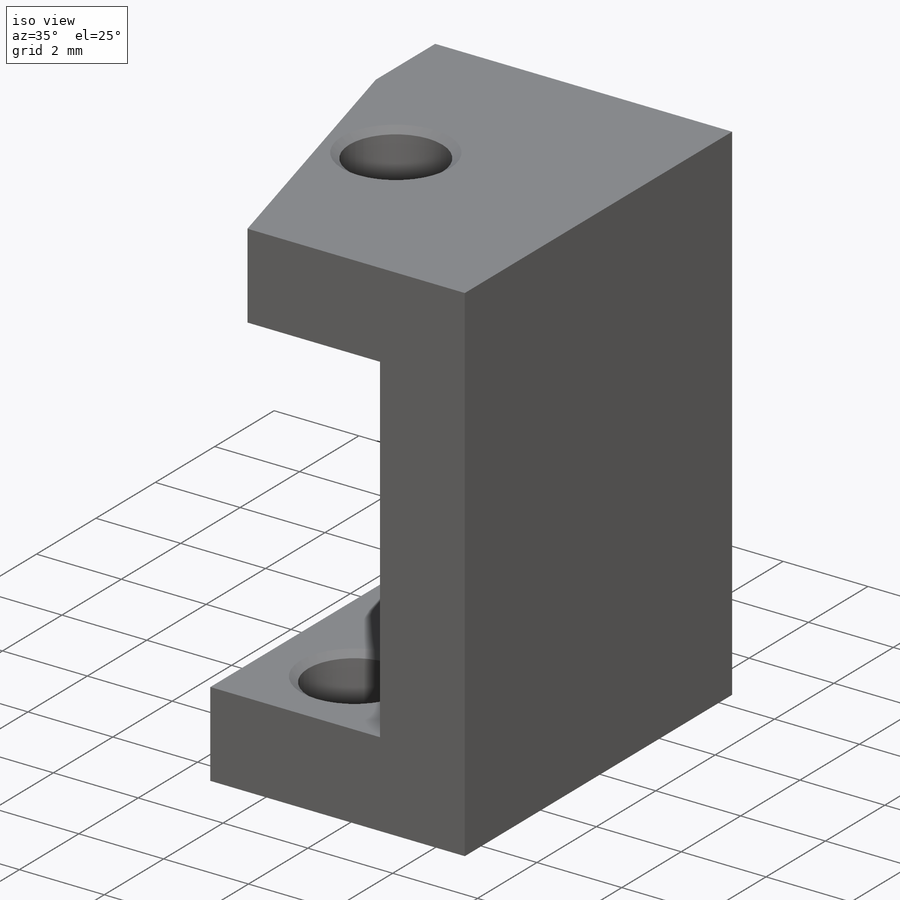
[diagram: iso view]
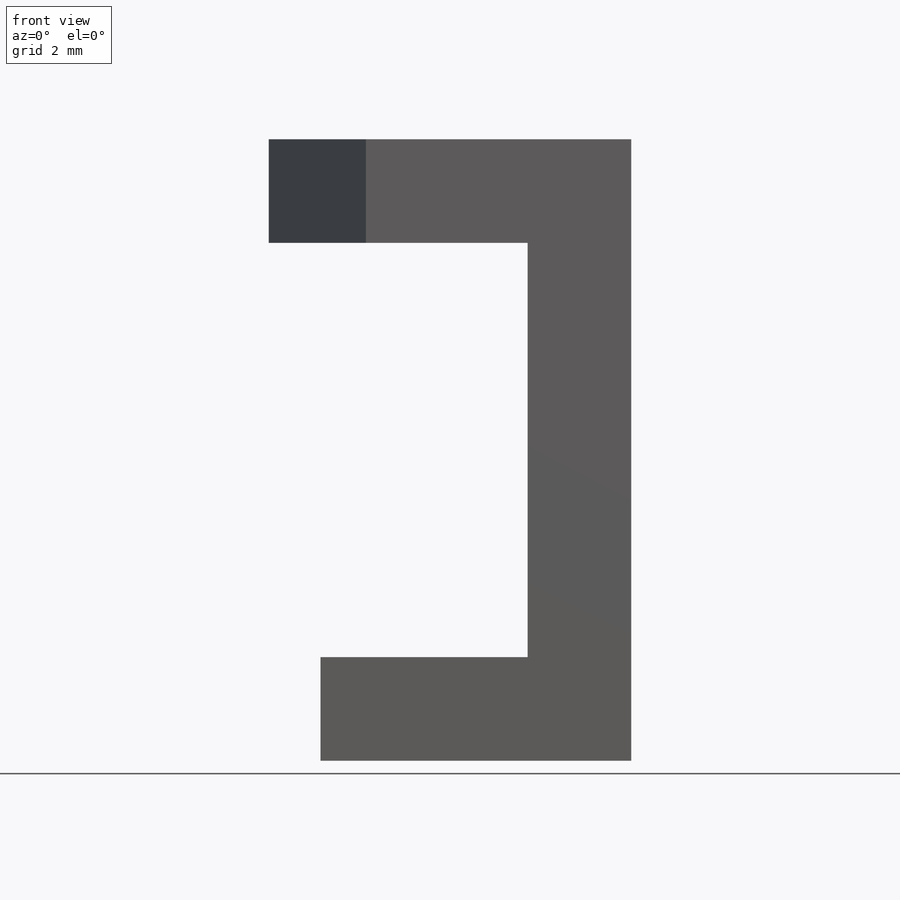
[diagram: front view]
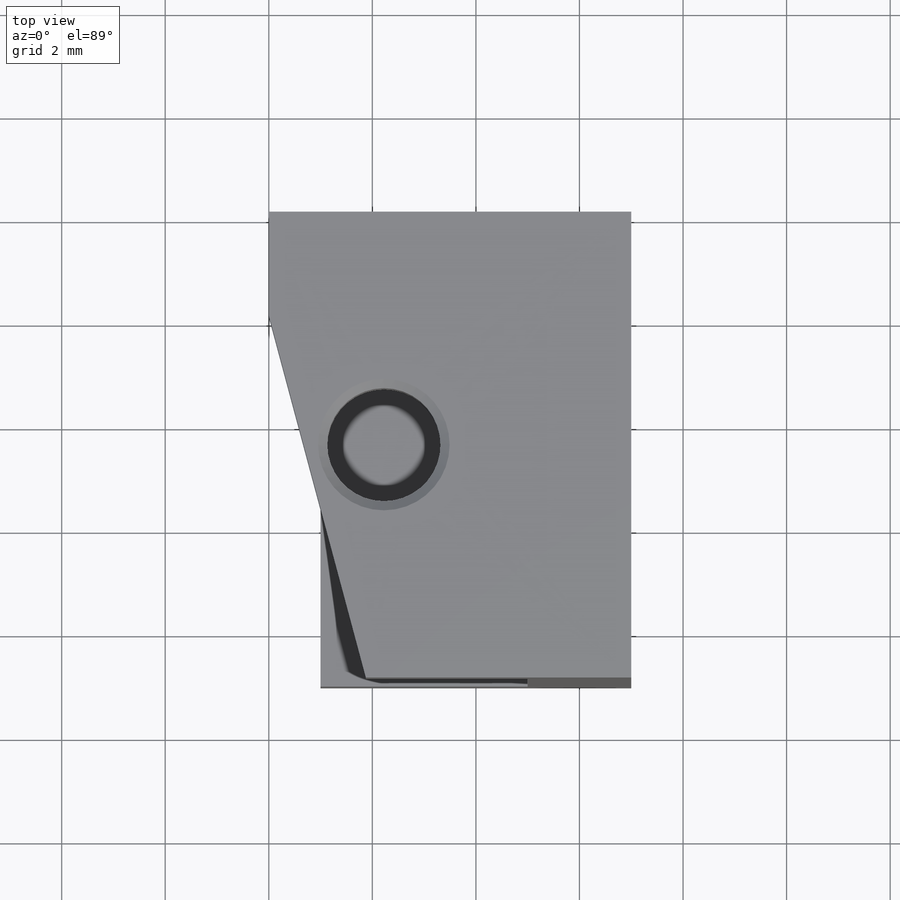
[diagram: top view]
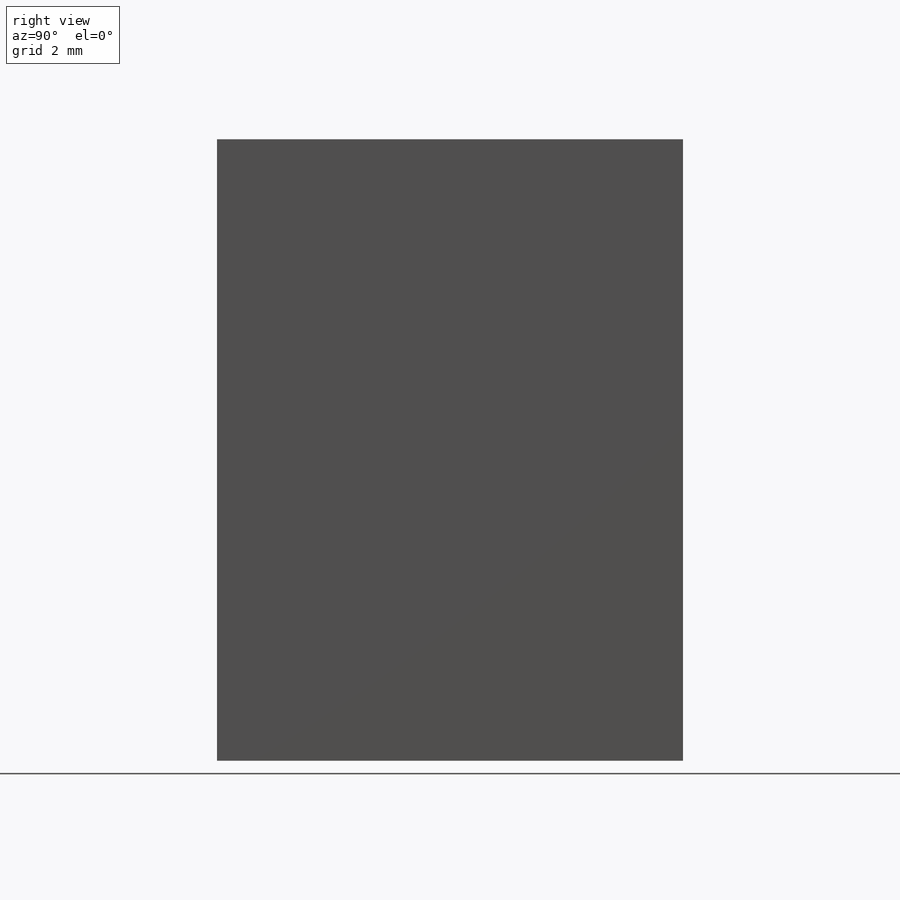
[diagram: right view]
SOLIDWORKS PART (.sldprt)
format: sldprt  version: not decoded by parser v0  size: 227,840 bytes
history: native  units: mm
features: sketch x6, plane x3, hole x2, material x1, extrude x1, cut_extrude x1, chamfer x1 (+13 scaffold rows collapsed)
feature tree (28):
  scaffold x13  (default folders/planes/origin — collapsed)
  material  "Материал <не указан>"
  plane  "Спереди"
  plane  "Сверху"
  plane  "Справа"
  sketch  "Эскиз1"  dims[c1.D1=~9.977296mm c1.D2=12.0mm c2.D1=12.0mm c2.D2=25.0mm c2.D3=2.0mm]
  extrude  "Бобышка-Вытянуть1"  Depth=9mm
  sketch  "Эскиз2"  dims[D1=7.0mm D2=6.0mm]
  cut_extrude  "Вырез-Вытянуть1"  [1 undecoded]
  chamfer  "Фаска1"  Distance=7mm Angle=15deg
  hole  "Отверстие обработанное метчиком #2-561"  [1 undecoded]
  sketch  "Эскиз4"  dims[D1=2.0mm D2=2.0mm D3=2.0mm]
  sketch  "Эскиз5"  dims[hole-wizard template sketch: 46 standard entries collapsed; hole parameters kept: c15.Диаметр резьбы=2.1844mm c15.Глубина проходного сверла=2.0mm c15.Диаметр передней зенковки=2.54mm c15.D4=~3.666174mm c15.Угол передней зенковки=110.0deg c15.Диаметр задней зенковки=2.54mm c15.D6=~9.919017mm c15.Угол задней зенковки=110.0deg]
  hole  "Отверстие обработанное метчиком #2-562"  [1 undecoded]
  sketch  "Эскиз7"  dims[D1=1.5mm D2=4.5mm]
  sketch  "Эскиз6"  dims[hole-wizard template sketch: 46 standard entries collapsed; hole parameters kept: c15.Диаметр резьбы=2.1844mm c15.Глубина проходного сверла=2.0mm c15.Диаметр передней зенковки=2.54mm c15.D4=~3.666174mm c15.Угол передней зенковки=110.0deg c15.Диаметр задней зенковки=2.54mm c15.D6=~9.919017mm c15.Угол задней зенковки=110.0deg]
decode coverage: 8 of 11 modeling features carry decoded parameters
note: ~ marks probable driven/reference dimensions
note: 3 parameter values undecoded
summary: no parameter record found for 3 features
note: suppression state not decoded; provenance and decode notes live in map.json
